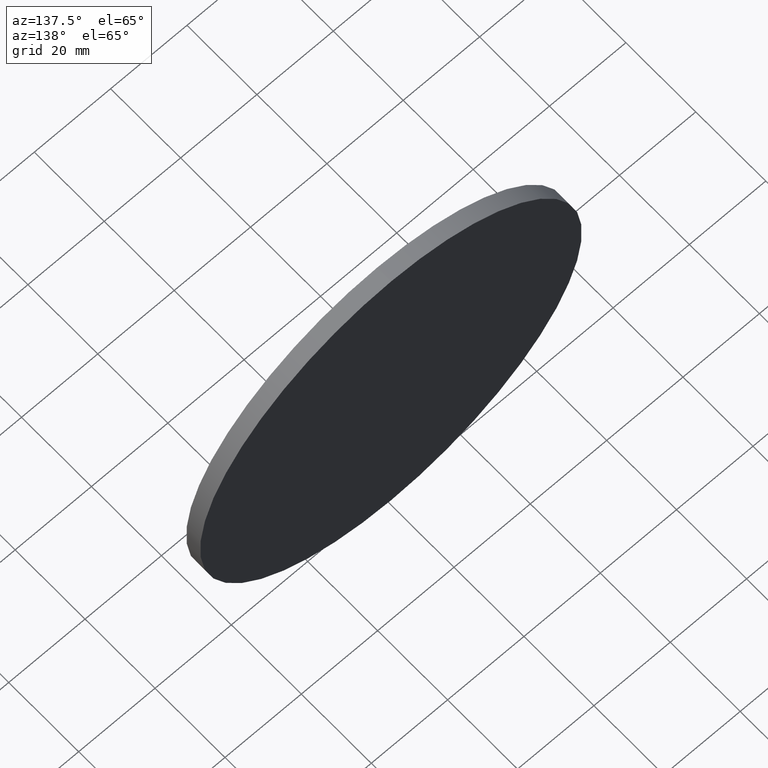
[diagram: clean part render]
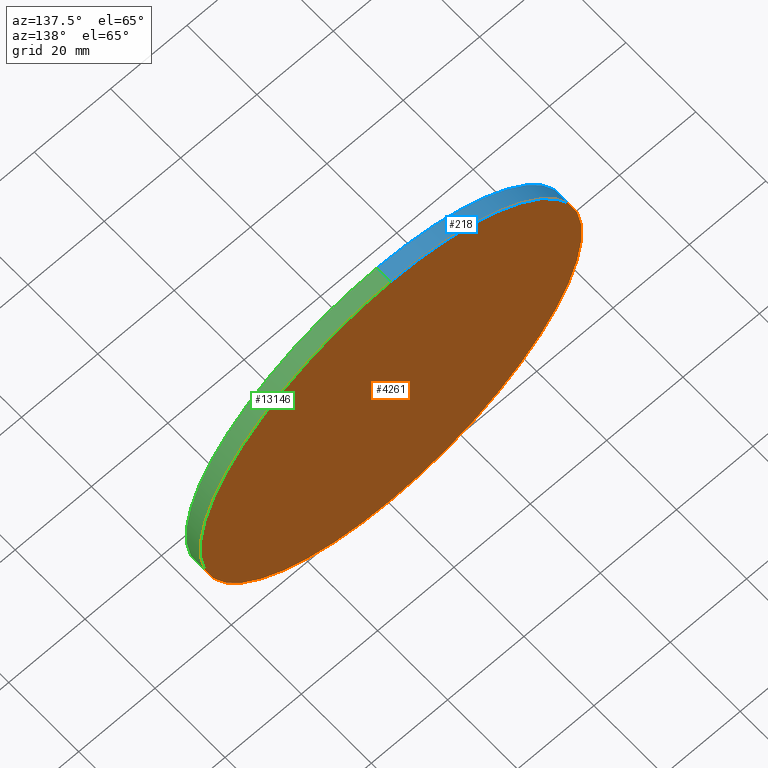
[diagram: same view with three faces highlighted in distinct colors, each labeled with its STEP entity id]
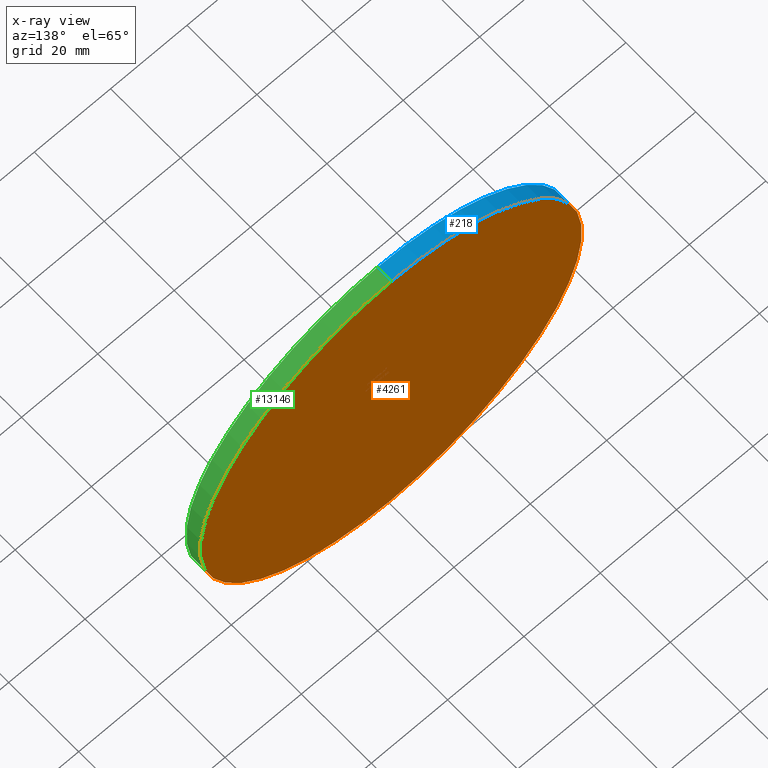
[diagram: x-ray of the same camera — body ghosted, the three highlighted faces saturated]
A machine part, auxiliary view with three faces highlighted in distinct colors.
The next image is the same camera in x-ray (body ghosted, the three faces saturated) — at least one of them is partly hidden behind the body in this view.
Their STEP definitions:

[orange] entity #4261 — the highlighted planar face has unit normal (0, 1, 0).
#534 = VERTEX_POINT ( 'NONE', #732 ) ;
#683 = CARTESIAN_POINT ( 'NONE',  ( 0.000000000000000000, 2.000000000000000000, -50.00000000000000000 ) ) ;
#732 = CARTESIAN_POINT ( 'NONE',  ( 6.123233995736766085E-15, 2.000000000000000000, 50.00000000000000000 ) ) ;
#1635 = CIRCLE ( 'NONE', #9575, 50.00000000000000000 ) ;
#3143 = CARTESIAN_POINT ( 'NONE',  ( 0.000000000000000000, 2.000000000000000000, 0.000000000000000000 ) ) ;
#4261 = ADVANCED_FACE ( 'NONE', ( #9882 ), #4851, .T. ) ;
#4644 = DIRECTION ( 'NONE',  ( 0.000000000000000000, 0.000000000000000000, 1.000000000000000000 ) ) ;
#4851 = PLANE ( 'NONE',  #6329 ) ;
#5252 = DIRECTION ( 'NONE',  ( 0.000000000000000000, 0.000000000000000000, 1.000000000000000000 ) ) ;
#6162 = AXIS2_PLACEMENT_3D ( 'NONE', #3143, #8222, #5252 ) ;
#6329 = AXIS2_PLACEMENT_3D ( 'NONE', #9057, #13159, #8006 ) ;
#7356 = EDGE_CURVE ( 'NONE', #534, #11246, #1635, .T. ) ;
#7847 = ORIENTED_EDGE ( 'NONE', *, *, #7356, .T. ) ;
#8006 = DIRECTION ( 'NONE',  ( 0.000000000000000000, -0.000000000000000000, 1.000000000000000000 ) ) ;
#8222 = DIRECTION ( 'NONE',  ( 0.000000000000000000, 1.000000000000000000, 0.000000000000000000 ) ) ;
#8742 = CARTESIAN_POINT ( 'NONE',  ( 0.000000000000000000, 2.000000000000000000, 0.000000000000000000 ) ) ;
#8795 = DIRECTION ( 'NONE',  ( 0.000000000000000000, 1.000000000000000000, 0.000000000000000000 ) ) ;
#9057 = CARTESIAN_POINT ( 'NONE',  ( 0.000000000000000000, 2.000000000000000000, 0.000000000000000000 ) ) ;
#9066 = EDGE_CURVE ( 'NONE', #11246, #534, #10244, .T. ) ;
#9489 = ORIENTED_EDGE ( 'NONE', *, *, #9066, .T. ) ;
#9575 = AXIS2_PLACEMENT_3D ( 'NONE', #8742, #8795, #4644 ) ;
#9882 = FACE_OUTER_BOUND ( 'NONE', #13210, .T. ) ;
#10244 = CIRCLE ( 'NONE', #6162, 50.00000000000000000 ) ;
#11246 = VERTEX_POINT ( 'NONE', #683 ) ;
#13159 = DIRECTION ( 'NONE',  ( 0.000000000000000000, 1.000000000000000000, 0.000000000000000000 ) ) ;
#13210 = EDGE_LOOP ( 'NONE', ( #9489, #7847 ) ) ;

[blue] entity #218 — the highlighted cylindrical surface (partial cylindrical patch) has radius 50 mm, axis along (-0, -1, -0).
#212 = CARTESIAN_POINT ( 'NONE',  ( 6.123233995736766085E-15, -2.000000000000000000, 50.00000000000000000 ) ) ;
#218 = ADVANCED_FACE ( 'NONE', ( #1624 ), #10920, .T. ) ;
#534 = VERTEX_POINT ( 'NONE', #732 ) ;
#683 = CARTESIAN_POINT ( 'NONE',  ( 0.000000000000000000, 2.000000000000000000, -50.00000000000000000 ) ) ;
#732 = CARTESIAN_POINT ( 'NONE',  ( 6.123233995736766085E-15, 2.000000000000000000, 50.00000000000000000 ) ) ;
#834 = ORIENTED_EDGE ( 'NONE', *, *, #3865, .T. ) ;
#1098 = CARTESIAN_POINT ( 'NONE',  ( 6.123233995736766085E-15, 2.000000000000000000, 50.00000000000000000 ) ) ;
#1624 = FACE_OUTER_BOUND ( 'NONE', #3597, .T. ) ;
#1642 = VERTEX_POINT ( 'NONE', #212 ) ;
#1738 = CARTESIAN_POINT ( 'NONE',  ( 0.000000000000000000, 2.000000000000000000, 0.000000000000000000 ) ) ;
#1885 = DIRECTION ( 'NONE',  ( 0.000000000000000000, 0.000000000000000000, 1.000000000000000000 ) ) ;
#2000 = DIRECTION ( 'NONE',  ( -0.000000000000000000, -1.000000000000000000, -0.000000000000000000 ) ) ;
#2283 = ORIENTED_EDGE ( 'NONE', *, *, #9066, .F. ) ;
#2883 = LINE ( 'NONE', #13372, #9105 ) ;
#3143 = CARTESIAN_POINT ( 'NONE',  ( 0.000000000000000000, 2.000000000000000000, 0.000000000000000000 ) ) ;
#3597 = EDGE_LOOP ( 'NONE', ( #8388, #2283, #5094, #834 ) ) ;
#3865 = EDGE_CURVE ( 'NONE', #8942, #1642, #7093, .T. ) ;
#4844 = DIRECTION ( 'NONE',  ( -0.000000000000000000, -1.000000000000000000, -0.000000000000000000 ) ) ;
#4868 = DIRECTION ( 'NONE',  ( 0.000000000000000000, 0.000000000000000000, -1.000000000000000000 ) ) ;
#5094 = ORIENTED_EDGE ( 'NONE', *, *, #9034, .T. ) ;
#5252 = DIRECTION ( 'NONE',  ( 0.000000000000000000, 0.000000000000000000, 1.000000000000000000 ) ) ;
#5861 = VECTOR ( 'NONE', #2000, 1000.000000000000000 ) ;
#5978 = DIRECTION ( 'NONE',  ( 0.000000000000000000, 1.000000000000000000, 0.000000000000000000 ) ) ;
#6162 = AXIS2_PLACEMENT_3D ( 'NONE', #3143, #8222, #5252 ) ;
#6825 = CARTESIAN_POINT ( 'NONE',  ( 0.000000000000000000, -2.000000000000000000, -50.00000000000000000 ) ) ;
#7092 = EDGE_CURVE ( 'NONE', #534, #1642, #7837, .T. ) ;
#7093 = CIRCLE ( 'NONE', #10804, 50.00000000000000000 ) ;
#7458 = AXIS2_PLACEMENT_3D ( 'NONE', #1738, #9030, #4868 ) ;
#7837 = LINE ( 'NONE', #1098, #5861 ) ;
#8222 = DIRECTION ( 'NONE',  ( 0.000000000000000000, 1.000000000000000000, 0.000000000000000000 ) ) ;
#8388 = ORIENTED_EDGE ( 'NONE', *, *, #7092, .F. ) ;
#8942 = VERTEX_POINT ( 'NONE', #6825 ) ;
#9030 = DIRECTION ( 'NONE',  ( -0.000000000000000000, -1.000000000000000000, -0.000000000000000000 ) ) ;
#9034 = EDGE_CURVE ( 'NONE', #11246, #8942, #2883, .T. ) ;
#9066 = EDGE_CURVE ( 'NONE', #11246, #534, #10244, .T. ) ;
#9105 = VECTOR ( 'NONE', #4844, 1000.000000000000000 ) ;
#10244 = CIRCLE ( 'NONE', #6162, 50.00000000000000000 ) ;
#10804 = AXIS2_PLACEMENT_3D ( 'NONE', #11185, #5978, #1885 ) ;
#10920 = CYLINDRICAL_SURFACE ( 'NONE', #7458, 50.00000000000000000 ) ;
#11185 = CARTESIAN_POINT ( 'NONE',  ( 0.000000000000000000, -2.000000000000000000, 0.000000000000000000 ) ) ;
#11246 = VERTEX_POINT ( 'NONE', #683 ) ;
#13372 = CARTESIAN_POINT ( 'NONE',  ( 0.000000000000000000, 2.000000000000000000, -50.00000000000000000 ) ) ;

[green] entity #13146 — the highlighted cylindrical surface (partial cylindrical patch) has radius 50 mm, axis along (-0, -1, -0).
#212 = CARTESIAN_POINT ( 'NONE',  ( 6.123233995736766085E-15, -2.000000000000000000, 50.00000000000000000 ) ) ;
#346 = CIRCLE ( 'NONE', #9762, 50.00000000000000000 ) ;
#534 = VERTEX_POINT ( 'NONE', #732 ) ;
#683 = CARTESIAN_POINT ( 'NONE',  ( 0.000000000000000000, 2.000000000000000000, -50.00000000000000000 ) ) ;
#732 = CARTESIAN_POINT ( 'NONE',  ( 6.123233995736766085E-15, 2.000000000000000000, 50.00000000000000000 ) ) ;
#1098 = CARTESIAN_POINT ( 'NONE',  ( 6.123233995736766085E-15, 2.000000000000000000, 50.00000000000000000 ) ) ;
#1504 = ORIENTED_EDGE ( 'NONE', *, *, #9034, .F. ) ;
#1635 = CIRCLE ( 'NONE', #9575, 50.00000000000000000 ) ;
#1642 = VERTEX_POINT ( 'NONE', #212 ) ;
#2000 = DIRECTION ( 'NONE',  ( -0.000000000000000000, -1.000000000000000000, -0.000000000000000000 ) ) ;
#2831 = CYLINDRICAL_SURFACE ( 'NONE', #5309, 50.00000000000000000 ) ;
#2883 = LINE ( 'NONE', #13372, #9105 ) ;
#3582 = DIRECTION ( 'NONE',  ( 0.000000000000000000, 1.000000000000000000, 0.000000000000000000 ) ) ;
#4513 = DIRECTION ( 'NONE',  ( 0.000000000000000000, 0.000000000000000000, 1.000000000000000000 ) ) ;
#4644 = DIRECTION ( 'NONE',  ( 0.000000000000000000, 0.000000000000000000, 1.000000000000000000 ) ) ;
#4844 = DIRECTION ( 'NONE',  ( -0.000000000000000000, -1.000000000000000000, -0.000000000000000000 ) ) ;
#4875 = EDGE_LOOP ( 'NONE', ( #10795, #12384, #8074, #1504 ) ) ;
#5309 = AXIS2_PLACEMENT_3D ( 'NONE', #6155, #9181, #12294 ) ;
#5789 = FACE_OUTER_BOUND ( 'NONE', #4875, .T. ) ;
#5861 = VECTOR ( 'NONE', #2000, 1000.000000000000000 ) ;
#6155 = CARTESIAN_POINT ( 'NONE',  ( 0.000000000000000000, 2.000000000000000000, 0.000000000000000000 ) ) ;
#6825 = CARTESIAN_POINT ( 'NONE',  ( 0.000000000000000000, -2.000000000000000000, -50.00000000000000000 ) ) ;
#6912 = EDGE_CURVE ( 'NONE', #1642, #8942, #346, .T. ) ;
#7092 = EDGE_CURVE ( 'NONE', #534, #1642, #7837, .T. ) ;
#7356 = EDGE_CURVE ( 'NONE', #534, #11246, #1635, .T. ) ;
#7837 = LINE ( 'NONE', #1098, #5861 ) ;
#8074 = ORIENTED_EDGE ( 'NONE', *, *, #6912, .T. ) ;
#8742 = CARTESIAN_POINT ( 'NONE',  ( 0.000000000000000000, 2.000000000000000000, 0.000000000000000000 ) ) ;
#8795 = DIRECTION ( 'NONE',  ( 0.000000000000000000, 1.000000000000000000, 0.000000000000000000 ) ) ;
#8942 = VERTEX_POINT ( 'NONE', #6825 ) ;
#9034 = EDGE_CURVE ( 'NONE', #11246, #8942, #2883, .T. ) ;
#9105 = VECTOR ( 'NONE', #4844, 1000.000000000000000 ) ;
#9181 = DIRECTION ( 'NONE',  ( -0.000000000000000000, -1.000000000000000000, -0.000000000000000000 ) ) ;
#9575 = AXIS2_PLACEMENT_3D ( 'NONE', #8742, #8795, #4644 ) ;
#9762 = AXIS2_PLACEMENT_3D ( 'NONE', #11861, #3582, #4513 ) ;
#10795 = ORIENTED_EDGE ( 'NONE', *, *, #7356, .F. ) ;
#11246 = VERTEX_POINT ( 'NONE', #683 ) ;
#11861 = CARTESIAN_POINT ( 'NONE',  ( 0.000000000000000000, -2.000000000000000000, 0.000000000000000000 ) ) ;
#12294 = DIRECTION ( 'NONE',  ( 0.000000000000000000, 0.000000000000000000, -1.000000000000000000 ) ) ;
#12384 = ORIENTED_EDGE ( 'NONE', *, *, #7092, .T. ) ;
#13146 = ADVANCED_FACE ( 'NONE', ( #5789 ), #2831, .T. ) ;
#13372 = CARTESIAN_POINT ( 'NONE',  ( 0.000000000000000000, 2.000000000000000000, -50.00000000000000000 ) ) ;